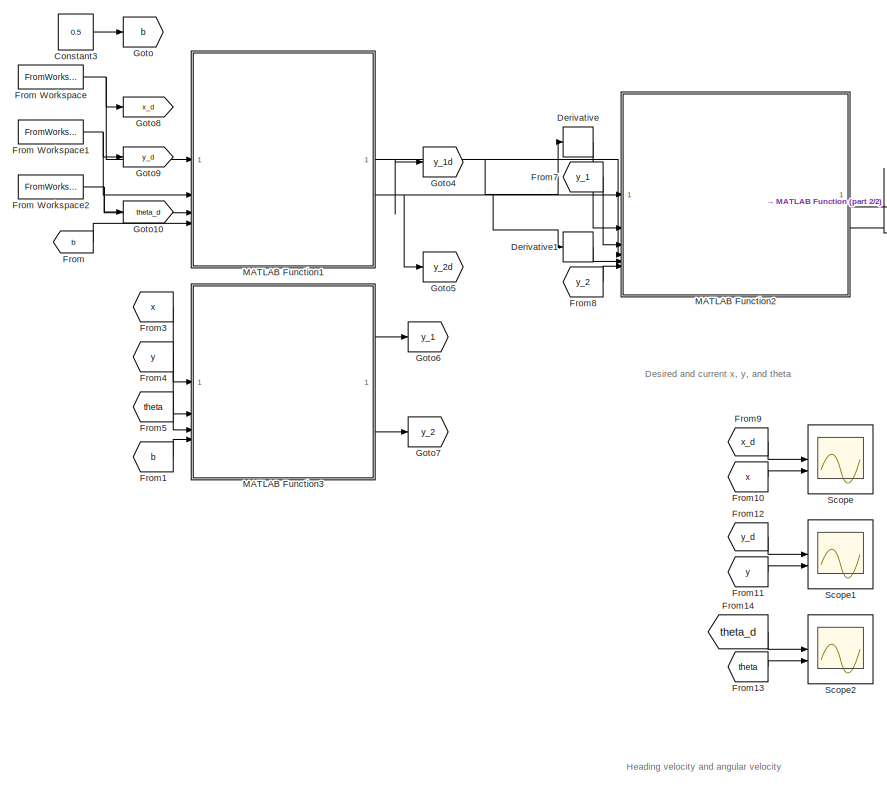
[diagram: root canvas - part 1/2, left side, full height]
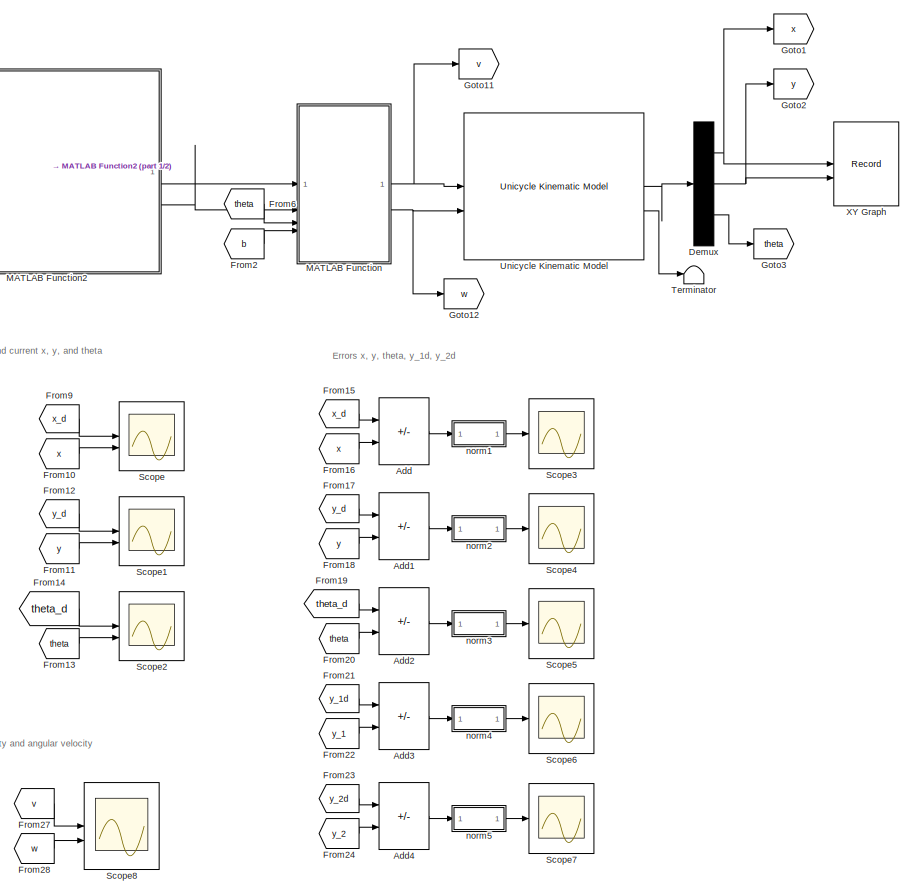
[diagram: root canvas - part 2/2, right side, full height]
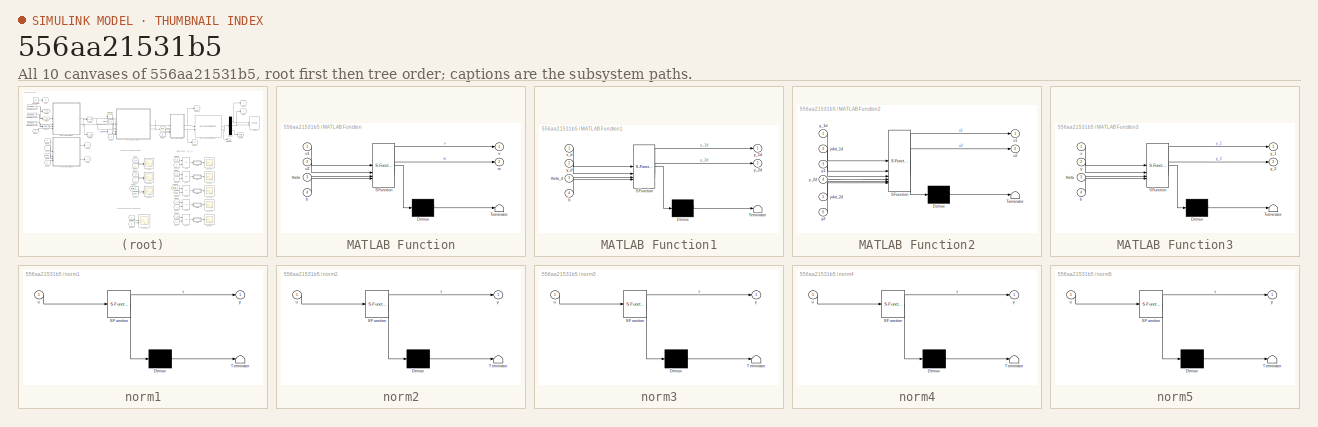
[diagram: thumbnail index - all 10 canvases of the model, root first then tree order]
MODEL slx_556aa21531b5
KIND model
CONFIG AbsTol = auto
CONFIG EnableMultiTasking = off
CONFIG FixedStep = auto
CONFIG InitFcn = Es_3_2;
CONFIG MaxStep = auto
CONFIG MinStep = auto
CONFIG RelTol = 1e-3
CONFIG SampleTimeConstraint = Unconstrained
CONFIG SolverName = VariableStepAuto
CONFIG StartTime = 0.0
CONFIG StopTime = tf
BLOCK [Sum] Add
  IconShape = rectangular
  Inputs = +-
BLOCK [Sum] Add1
  IconShape = rectangular
  Inputs = +-
BLOCK [Sum] Add2
  IconShape = rectangular
  Inputs = +-
BLOCK [Sum] Add3
  IconShape = rectangular
  Inputs = +-
BLOCK [Sum] Add4
  IconShape = rectangular
  Inputs = +-
BLOCK [Constant] Constant3
  Value = 0.5
BLOCK [Demux] Demux
  Outputs = 3
BLOCK [Derivative] Derivative
BLOCK [Derivative] Derivative1
BLOCK [From] From
  GotoTag = b
BLOCK [FromWorkspace] From Workspace
  VariableName = xd
BLOCK [FromWorkspace] From Workspace1
  VariableName = yd
BLOCK [FromWorkspace] From Workspace2
  VariableName = thetad
BLOCK [From] From1
  GotoTag = b
BLOCK [From] From10
  GotoTag = x
BLOCK [From] From11
  GotoTag = y
BLOCK [From] From12
  GotoTag = y_d
BLOCK [From] From13
  GotoTag = theta
BLOCK [From] From14
  GotoTag = theta_d
BLOCK [From] From15
  GotoTag = x_d
BLOCK [From] From16
  GotoTag = x
BLOCK [From] From17
  GotoTag = y_d
BLOCK [From] From18
  GotoTag = y
BLOCK [From] From19
  GotoTag = theta_d
BLOCK [From] From2
  GotoTag = b
BLOCK [From] From20
  GotoTag = theta
BLOCK [From] From21
  GotoTag = y_1d
BLOCK [From] From22
  GotoTag = y_1
BLOCK [From] From23
  GotoTag = y_2d
BLOCK [From] From24
  GotoTag = y_2
BLOCK [From] From27
  GotoTag = v
BLOCK [From] From28
  GotoTag = w
BLOCK [From] From3
  GotoTag = x
BLOCK [From] From4
  GotoTag = y
BLOCK [From] From5
  GotoTag = theta
BLOCK [From] From6
  GotoTag = theta
BLOCK [From] From7
  GotoTag = y_1
BLOCK [From] From8
  GotoTag = y_2
BLOCK [From] From9
  GotoTag = x_d
BLOCK [Goto] Goto
  GotoTag = b
BLOCK [Goto] Goto1
  GotoTag = x
BLOCK [Goto] Goto10
  GotoTag = theta_d
BLOCK [Goto] Goto11
  GotoTag = v
BLOCK [Goto] Goto12
  GotoTag = w
BLOCK [Goto] Goto2
  GotoTag = y
BLOCK [Goto] Goto3
  GotoTag = theta
BLOCK [Goto] Goto4
  GotoTag = y_1d
BLOCK [Goto] Goto5
  GotoTag = y_2d
BLOCK [Goto] Goto6
  GotoTag = y_1
BLOCK [Goto] Goto7
  GotoTag = y_2
BLOCK [Goto] Goto8
  GotoTag = x_d
BLOCK [Goto] Goto9
  GotoTag = y_d
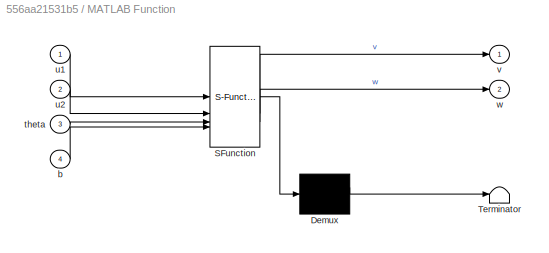
BLOCK [SubSystem] MATLAB Function
  ErrorFcn = Stateflow.Translate.translate
  PermitHierarchicalResolution = ExplicitOnly
  SFBlockType = MATLAB Function
  TreatAsAtomicUnit = on
BLOCK [Demux] MATLAB Function/ Demux 
  Outputs = 1
BLOCK [S-Function] MATLAB Function/ SFunction 
  EnableBusSupport = on
  FunctionName = sf_sfun
  PortCounts = [4 3]
  SFcnIsStateOwnerBlock = off
  SFunctionDeploymentMode = off
  Tag = Stateflow S-Function 2
BLOCK [Terminator] MATLAB Function/ Terminator 
BLOCK [Inport] MATLAB Function/b
  Port = 4
BLOCK [Inport] MATLAB Function/theta
  Port = 3
BLOCK [Inport] MATLAB Function/u1
BLOCK [Inport] MATLAB Function/u2
  Port = 2
BLOCK [Outport] MATLAB Function/v
BLOCK [Outport] MATLAB Function/w
  Port = 2
BLOCK [SubSystem] MATLAB Function1
  ErrorFcn = Stateflow.Translate.translate
  PermitHierarchicalResolution = ExplicitOnly
  SFBlockType = MATLAB Function
  TreatAsAtomicUnit = on
BLOCK [Demux] MATLAB Function1/ Demux 
  Outputs = 1
BLOCK [S-Function] MATLAB Function1/ SFunction 
  EnableBusSupport = on
  FunctionName = sf_sfun
  PortCounts = [4 3]
  SFcnIsStateOwnerBlock = off
  SFunctionDeploymentMode = off
  Tag = Stateflow S-Function 1
BLOCK [Terminator] MATLAB Function1/ Terminator 
BLOCK [Inport] MATLAB Function1/b
  Port = 4
BLOCK [Inport] MATLAB Function1/theta_d
  Port = 3
BLOCK [Inport] MATLAB Function1/x_d
BLOCK [Outport] MATLAB Function1/y_1d
BLOCK [Outport] MATLAB Function1/y_2d
  Port = 2
BLOCK [Inport] MATLAB Function1/y_d
  Port = 2
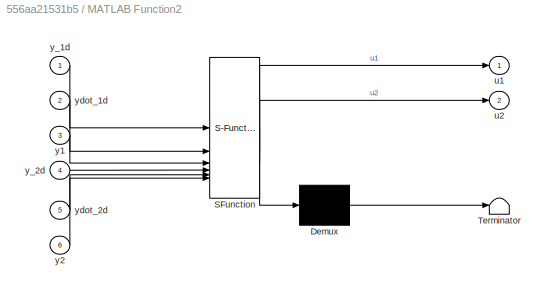
BLOCK [SubSystem] MATLAB Function2
  ErrorFcn = Stateflow.Translate.translate
  PermitHierarchicalResolution = ExplicitOnly
  SFBlockType = MATLAB Function
  TreatAsAtomicUnit = on
BLOCK [Demux] MATLAB Function2/ Demux 
  Outputs = 1
BLOCK [S-Function] MATLAB Function2/ SFunction 
  EnableBusSupport = on
  FunctionName = sf_sfun
  PortCounts = [6 3]
  SFcnIsStateOwnerBlock = off
  SFunctionDeploymentMode = off
  Tag = Stateflow S-Function 3
BLOCK [Terminator] MATLAB Function2/ Terminator 
BLOCK [Outport] MATLAB Function2/u1
BLOCK [Outport] MATLAB Function2/u2
  Port = 2
BLOCK [Inport] MATLAB Function2/y1
  Port = 3
BLOCK [Inport] MATLAB Function2/y2
  Port = 6
BLOCK [Inport] MATLAB Function2/y_1d
BLOCK [Inport] MATLAB Function2/y_2d
  Port = 4
BLOCK [Inport] MATLAB Function2/ydot_1d
  Port = 2
BLOCK [Inport] MATLAB Function2/ydot_2d
  Port = 5
BLOCK [SubSystem] MATLAB Function3
  ErrorFcn = Stateflow.Translate.translate
  PermitHierarchicalResolution = ExplicitOnly
  SFBlockType = MATLAB Function
  TreatAsAtomicUnit = on
BLOCK [Demux] MATLAB Function3/ Demux 
  Outputs = 1
BLOCK [S-Function] MATLAB Function3/ SFunction 
  EnableBusSupport = on
  FunctionName = sf_sfun
  PortCounts = [4 3]
  SFcnIsStateOwnerBlock = off
  SFunctionDeploymentMode = off
  Tag = Stateflow S-Function 4
BLOCK [Terminator] MATLAB Function3/ Terminator 
BLOCK [Inport] MATLAB Function3/b
  Port = 4
BLOCK [Inport] MATLAB Function3/theta
  Port = 3
BLOCK [Inport] MATLAB Function3/x
BLOCK [Inport] MATLAB Function3/y
  Port = 2
BLOCK [Outport] MATLAB Function3/y_1
BLOCK [Outport] MATLAB Function3/y_2
  Port = 2
BLOCK [Scope] Scope
  Floating = off
  NumInputPorts = 2
  ScopeSpecificationString = Simulink.scopes.TimeScopeBlockCfg('CurrentConfiguration', extmgr.ConfigurationSet(extmgr.Configuration('Core','General UI',true,'FigureColor',[1 1 1]),extmgr.Configuration('Core','Source UI',true),extmgr.Configuration('Sources','WiredSimulink',true),extmgr.Configuration('Visuals','Time Domain',true,'SerializedDisplays',{struct('MinYLimReal','-0.08868','MaxYLimReal','0.7981','YLabelReal','','MinYLi...<+2291ch>
BLOCK [Scope] Scope1
  Floating = off
  NumInputPorts = 2
  ScopeSpecificationString = Simulink.scopes.TimeScopeBlockCfg('CurrentConfiguration', extmgr.ConfigurationSet(extmgr.Configuration('Core','General UI',true,'FigureColor',[1 1 1]),extmgr.Configuration('Core','Source UI',true),extmgr.Configuration('Sources','WiredSimulink',true,'DataLoggingVariableName','ScopeData1'),extmgr.Configuration('Visuals','Time Domain',true,'SerializedDisplays',{struct('MinYLimReal','-0.09435','MaxYLi...<+2357ch>
BLOCK [Scope] Scope2
  Floating = off
  NumInputPorts = 2
  ScopeSpecificationString = Simulink.scopes.TimeScopeBlockCfg('CurrentConfiguration', extmgr.ConfigurationSet(extmgr.Configuration('Core','General UI',true,'FigureColor',[1 1 1]),extmgr.Configuration('Core','Source UI',true),extmgr.Configuration('Sources','WiredSimulink',true,'DataLoggingVariableName','ScopeData2'),extmgr.Configuration('Visuals','Time Domain',true,'SerializedDisplays',{struct('MinYLimReal','-0.35051','MaxYLi...<+2350ch>
BLOCK [Scope] Scope3
  Floating = off
  NumInputPorts = 1
  ScopeSpecificationString = Simulink.scopes.TimeScopeBlockCfg('CurrentConfiguration', extmgr.ConfigurationSet(extmgr.Configuration('Core','General UI',true,'FigureColor',[1 1 1]),extmgr.Configuration('Core','Source UI',true),extmgr.Configuration('Sources','WiredSimulink',true,'DataLoggingVariableName','ScopeData3'),extmgr.Configuration('Visuals','Time Domain',true,'SerializedDisplays',{struct('MinYLimReal','-0.00027','MaxYLi...<+2278ch>
BLOCK [Scope] Scope4
  Floating = off
  NumInputPorts = 1
  ScopeSpecificationString = Simulink.scopes.TimeScopeBlockCfg('CurrentConfiguration', extmgr.ConfigurationSet(extmgr.Configuration('Core','General UI',true,'FigureColor',[1 1 1]),extmgr.Configuration('Core','Source UI',true),extmgr.Configuration('Sources','WiredSimulink',true,'DataLoggingVariableName','ScopeData4'),extmgr.Configuration('Visuals','Time Domain',true,'SerializedDisplays',{struct('MinYLimReal','-0.00048','MaxYLi...<+2278ch>
BLOCK [Scope] Scope5
  Floating = off
  NumInputPorts = 1
  ScopeSpecificationString = Simulink.scopes.TimeScopeBlockCfg('CurrentConfiguration', extmgr.ConfigurationSet(extmgr.Configuration('Core','General UI',true,'FigureColor',[1 1 1]),extmgr.Configuration('Core','Source UI',true),extmgr.Configuration('Sources','WiredSimulink',true,'DataLoggingVariableName','ScopeData5'),extmgr.Configuration('Visuals','Time Domain',true,'SerializedDisplays',{struct('MinYLimReal','-0.00149','MaxYLi...<+2286ch>
BLOCK [Scope] Scope6
  Floating = off
  NumInputPorts = 1
  ScopeSpecificationString = Simulink.scopes.TimeScopeBlockCfg('CurrentConfiguration', extmgr.ConfigurationSet(extmgr.Configuration('Core','General UI',true,'FigureColor',[1 1 1]),extmgr.Configuration('Core','Source UI',true),extmgr.Configuration('Sources','WiredSimulink',true,'DataLoggingVariableName','ScopeData6'),extmgr.Configuration('Visuals','Time Domain',true,'SerializedDisplays',{struct('MinYLimReal','-0.00039','MaxYLi...<+2305ch>
BLOCK [Scope] Scope7
  Floating = off
  NumInputPorts = 1
  ScopeSpecificationString = Simulink.scopes.TimeScopeBlockCfg('CurrentConfiguration', extmgr.ConfigurationSet(extmgr.Configuration('Core','General UI',true,'FigureColor',[1 1 1]),extmgr.Configuration('Core','Source UI',true),extmgr.Configuration('Sources','WiredSimulink',true,'DataLoggingVariableName','ScopeData7'),extmgr.Configuration('Visuals','Time Domain',true,'SerializedDisplays',{struct('MinYLimReal','-0.0005','MaxYLim...<+2251ch>
BLOCK [Scope] Scope8
  Floating = off
  NumInputPorts = 2
  ScopeSpecificationString = Simulink.scopes.TimeScopeBlockCfg('CurrentConfiguration', extmgr.ConfigurationSet(extmgr.Configuration('Core','General UI',true,'FigureColor',[1 1 1]),extmgr.Configuration('Core','Source UI',true),extmgr.Configuration('Sources','WiredSimulink',true,'DataLoggingVariableName','ScopeData1'),extmgr.Configuration('Visuals','Time Domain',true,'SerializedDisplays',{struct('MinYLimReal','-0.007','MaxYLimR...<+3189ch>
BLOCK [Terminator] Terminator
BLOCK [Reference] Unicycle Kinematic Model  REF=robotmobilelib/Unicycle Kinematic Model
  SourceBlock = robotmobilelib/Unicycle Kinematic Model
  SourceType = Unicycle Kinematic Model
BLOCK [Record] XY Graph
  CompatibilityTag = XY
  FileSettingsInternal = {"entries":[{"content":{"excelSettings":{"content":{},"type":"Streamout.ExcelSettings"}},"type":"Streamout.FileSettingStorage","uuid":""}],"packageUris":["http:\/\/schema.mathworks.com\/mf0\/streamout_blocks\/R2020a"],"version":"1.0"}
  Layout = [1 1]
  SignalsInternal = {"entries":[{"content":{"signals":[{"content":{"blockPath":[],"dimensions":[1],"domain":"","lineColor":"#a2142f","plots":[1],"port":1,"sid":[""],"signalID":92,"signalName":"Demux:1"},"type":"RecordBlkView.Signal","uuid":""},{"content":{"blockPath":[],"dimensions":[1],"domain":"","lineColor":"#139fff","plots":[1],"port":2,"sid":[""],"signalID":96,"signalName":"Demux:2"},"type":"RecordBlkView.Signal...<+158ch>
  VisualizationBindings = {"xyplotplugin":{"info":[{"series":[{"bindingParametersList":[{"parameter":"X-Axis","signalID":92,"signalName":"Demux:1"},{"parameter":"Y-Axis","signalID":96,"signalName":"Demux:2"}],"seriesID":22295}],"subplotID":1}]}}
BLOCK [SubSystem] norm1
  ErrorFcn = Stateflow.Translate.translate
  NameLocation = top
  PermitHierarchicalResolution = ExplicitOnly
  SFBlockType = MATLAB Function
  TreatAsAtomicUnit = on
BLOCK [Demux] norm1/ Demux 
  Outputs = 1
BLOCK [S-Function] norm1/ SFunction 
  EnableBusSupport = on
  FunctionName = sf_sfun
  PortCounts = [1 2]
  SFcnIsStateOwnerBlock = off
  SFunctionDeploymentMode = off
  Tag = Stateflow S-Function 5
BLOCK [Terminator] norm1/ Terminator 
BLOCK [Inport] norm1/u
BLOCK [Outport] norm1/y
BLOCK [SubSystem] norm2
  ErrorFcn = Stateflow.Translate.translate
  NameLocation = top
  PermitHierarchicalResolution = ExplicitOnly
  SFBlockType = MATLAB Function
  TreatAsAtomicUnit = on
BLOCK [Demux] norm2/ Demux 
  Outputs = 1
BLOCK [S-Function] norm2/ SFunction 
  EnableBusSupport = on
  FunctionName = sf_sfun
  PortCounts = [1 2]
  SFcnIsStateOwnerBlock = off
  SFunctionDeploymentMode = off
  Tag = Stateflow S-Function 6
BLOCK [Terminator] norm2/ Terminator 
BLOCK [Inport] norm2/u
BLOCK [Outport] norm2/y
BLOCK [SubSystem] norm3
  ErrorFcn = Stateflow.Translate.translate
  NameLocation = top
  PermitHierarchicalResolution = ExplicitOnly
  SFBlockType = MATLAB Function
  TreatAsAtomicUnit = on
BLOCK [Demux] norm3/ Demux 
  Outputs = 1
BLOCK [S-Function] norm3/ SFunction 
  EnableBusSupport = on
  FunctionName = sf_sfun
  PortCounts = [1 2]
  SFcnIsStateOwnerBlock = off
  SFunctionDeploymentMode = off
  Tag = Stateflow S-Function 7
BLOCK [Terminator] norm3/ Terminator 
BLOCK [Inport] norm3/u
BLOCK [Outport] norm3/y
BLOCK [SubSystem] norm4
  ErrorFcn = Stateflow.Translate.translate
  NameLocation = top
  PermitHierarchicalResolution = ExplicitOnly
  SFBlockType = MATLAB Function
  TreatAsAtomicUnit = on
BLOCK [Demux] norm4/ Demux 
  Outputs = 1
BLOCK [S-Function] norm4/ SFunction 
  EnableBusSupport = on
  FunctionName = sf_sfun
  PortCounts = [1 2]
  SFcnIsStateOwnerBlock = off
  SFunctionDeploymentMode = off
  Tag = Stateflow S-Function 8
BLOCK [Terminator] norm4/ Terminator 
BLOCK [Inport] norm4/u
BLOCK [Outport] norm4/y
BLOCK [SubSystem] norm5
  ErrorFcn = Stateflow.Translate.translate
  NameLocation = top
  PermitHierarchicalResolution = ExplicitOnly
  SFBlockType = MATLAB Function
  TreatAsAtomicUnit = on
BLOCK [Demux] norm5/ Demux 
  Outputs = 1
BLOCK [S-Function] norm5/ SFunction 
  EnableBusSupport = on
  FunctionName = sf_sfun
  PortCounts = [1 2]
  SFcnIsStateOwnerBlock = off
  SFunctionDeploymentMode = off
  Tag = Stateflow S-Function 9
BLOCK [Terminator] norm5/ Terminator 
BLOCK [Inport] norm5/u
BLOCK [Outport] norm5/y
ANNOTATION (root): Desired and current x, y, and theta
ANNOTATION (root): Heading velocity and angular velocity
ANNOTATION (root): Errors x, y, theta, y_1d, y_2d
LINE Add1:1 -> norm2:1
LINE Add2:1 -> norm3:1
LINE Add3:1 -> norm4:1
LINE Add4:1 -> norm5:1
LINE Add:1 -> norm1:1
LINE Constant3:1 -> Goto:1
NET Demux:1 -> Goto1:1, XY Graph:1
NET Demux:2 -> Goto2:1, XY Graph:2
LINE Demux:3 -> Goto3:1
LINE Derivative1:1 -> MATLAB Function2:5
LINE Derivative:1 -> MATLAB Function2:2
NET From Workspace1:1 -> Goto9:1, MATLAB Function1:2
NET From Workspace2:1 -> Goto10:1, MATLAB Function1:3
NET From Workspace:1 -> Goto8:1, MATLAB Function1:1
LINE From10:1 -> Scope:2
LINE From11:1 -> Scope1:2
LINE From12:1 -> Scope1:1
LINE From13:1 -> Scope2:2
LINE From14:1 -> Scope2:1
LINE From15:1 -> Add:1
LINE From16:1 -> Add:2
LINE From17:1 -> Add1:1
LINE From18:1 -> Add1:2
LINE From19:1 -> Add2:1
LINE From1:1 -> MATLAB Function3:4
LINE From20:1 -> Add2:2
LINE From21:1 -> Add3:1
LINE From22:1 -> Add3:2
LINE From23:1 -> Add4:1
LINE From24:1 -> Add4:2
LINE From27:1 -> Scope8:1
LINE From28:1 -> Scope8:2
LINE From2:1 -> MATLAB Function:4
LINE From3:1 -> MATLAB Function3:1
LINE From4:1 -> MATLAB Function3:2
LINE From5:1 -> MATLAB Function3:3
LINE From6:1 -> MATLAB Function:3
LINE From7:1 -> MATLAB Function2:3
LINE From8:1 -> MATLAB Function2:6
LINE From9:1 -> Scope:1
LINE From:1 -> MATLAB Function1:4
NET MATLAB Function1:1 -> Derivative:1, Goto4:1, MATLAB Function2:1
NET MATLAB Function1:2 -> Derivative1:1, Goto5:1, MATLAB Function2:4
LINE MATLAB Function2:1 -> MATLAB Function:1
LINE MATLAB Function2:2 -> MATLAB Function:2
LINE MATLAB Function3:1 -> Goto6:1
LINE MATLAB Function3:2 -> Goto7:1
NET MATLAB Function:1 -> Goto11:1, Unicycle Kinematic Model:1
NET MATLAB Function:2 -> Goto12:1, Unicycle Kinematic Model:2
LINE Unicycle Kinematic Model:1 -> Demux:1
LINE Unicycle Kinematic Model:2 -> Terminator:1
LINE norm1:1 -> Scope3:1
LINE norm2:1 -> Scope4:1
LINE norm3:1 -> Scope5:1
LINE norm4:1 -> Scope6:1
LINE norm5:1 -> Scope7:1
note: NET lines group one-source signal fan-out (src -> all destinations, sorted); 1:1 wires keep LINE
CHART MATLAB Function1 states=1 transitions=1
  STATE_LABEL 'eML_blk_kernel()'
  STATE_LABEL 'SCRIPT:\nfunction [y_1d,y_2d]  = fcn(x_d,y_d,theta_d,b)\n\ny_1d=x_d+b*cos(theta_d);\ny_2d=y_d+b*sin(theta_d);\n\nend\n'
CHART MATLAB Function states=1 transitions=1
  STATE_LABEL 'eML_blk_kernel()'
  STATE_LABEL 'SCRIPT:\nfunction [v,w] = fcn(u1,u2,theta,b)\n\n\nT=[cos(theta) -b*sin(theta); sin(theta) b*cos(theta)];\n\n\nTinv = inv(T);\n\nv = Tinv(1,:)*[u1; u2];\nw = Tinv(2,:)*[u1; u2];\n\nend\n'
CHART MATLAB Function2 states=1 transitions=1
  STATE_LABEL 'eML_blk_kernel()'
  STATE_LABEL 'SCRIPT:\nfunction [u1,u2] = fcn(y_1d,ydot_1d,y1,y_2d,ydot_2d,y2)\n\nk1=5;\nk2=5;\n\nu1=ydot_1d+k1*(y_1d-y1);\nu2=ydot_2d+k2*(y_2d-y2);\nend\n'
CHART MATLAB Function3 states=1 transitions=1
  STATE_LABEL 'eML_blk_kernel()'
  STATE_LABEL 'SCRIPT:\nfunction [y_1,y_2]  = fcn(x,y,theta,b)\n\ny_1=x+b*cos(theta);\ny_2=y+b*sin(theta);\n\nend\n'
CHART norm1 states=1 transitions=1
  STATE_LABEL 'eML_blk_kernel()'
  STATE_LABEL 'SCRIPT:\nfunction y = norm(u)\ny = norm(u);\n'
CHART norm2 states=1 transitions=1
  STATE_LABEL 'eML_blk_kernel()'
  STATE_LABEL 'SCRIPT:\nfunction y = norm(u)\ny = norm(u);\n'
CHART norm3 states=1 transitions=1
  STATE_LABEL 'eML_blk_kernel()'
  STATE_LABEL 'SCRIPT:\nfunction y = norm(u)\ny = norm(u);\n'
CHART norm4 states=1 transitions=1
  STATE_LABEL 'eML_blk_kernel()'
  STATE_LABEL 'SCRIPT:\nfunction y = norm(u)\ny = norm(u);\n'
CHART norm5 states=1 transitions=1
  STATE_LABEL 'eML_blk_kernel()'
  STATE_LABEL 'SCRIPT:\nfunction y = norm(u)\ny = norm(u);\n'
CHART  states=0 transitions=0
CHART  states=0 transitions=0
CHART  states=0 transitions=0
CHART  states=0 transitions=0
CHART  states=0 transitions=0
CHART  states=0 transitions=0
CHART  states=0 transitions=0
CHART  states=0 transitions=0
CHART  states=0 transitions=0
